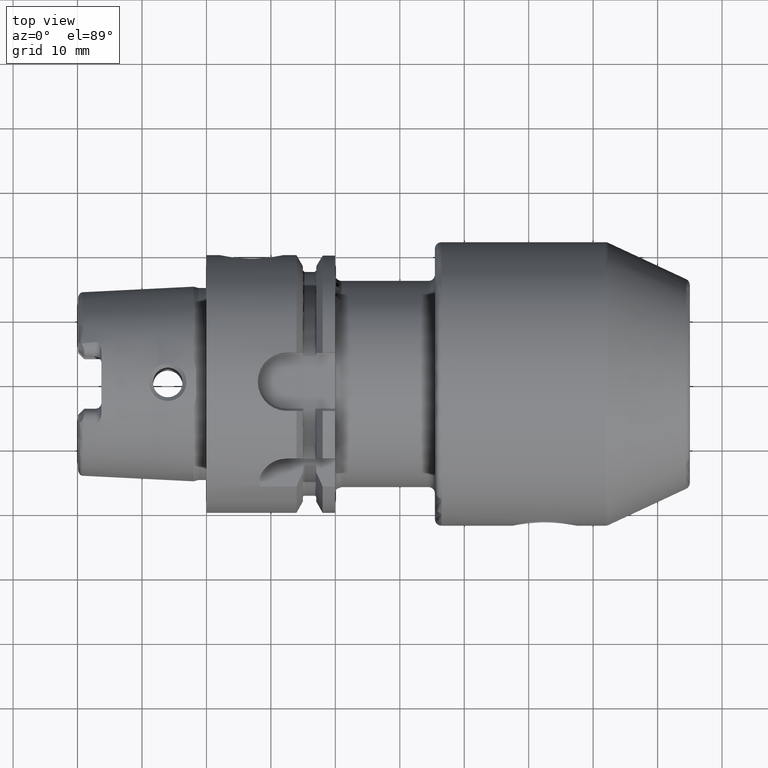
[diagram: clean part render]
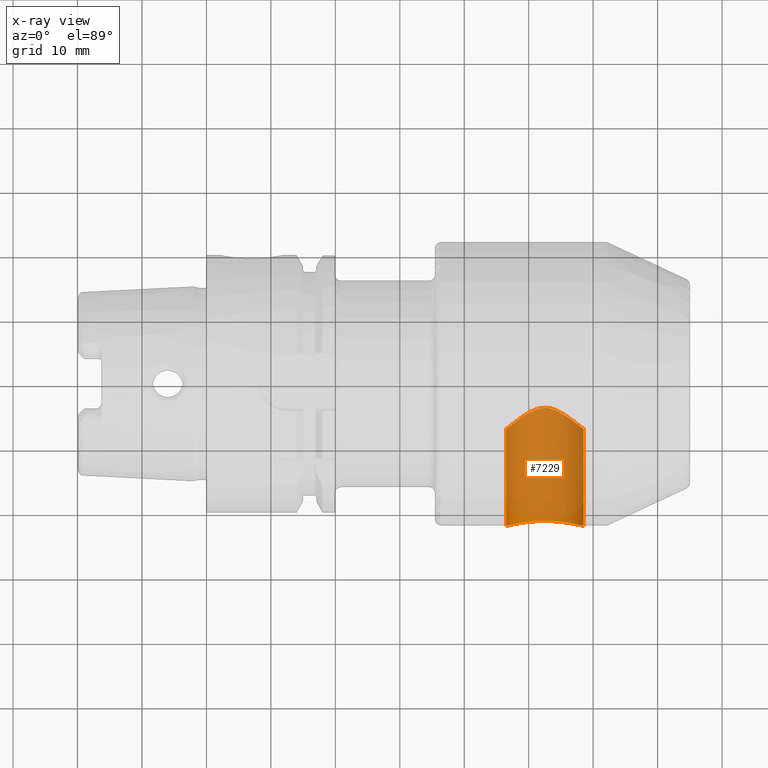
[diagram: x-ray — body ghosted, one internal face saturated and labeled with its STEP entity id]
A machine part, top view, then the same camera in x-ray: the body is ghosted and one INTERNAL B-rep face — a face not visible from any outside direction — is saturated and labeled: STEP entity #7229.
In plain terms, the highlighted cylindrical surface (partial cylindrical patch) has radius 6 mm, axis along (0, -1, 0).
Its self-contained STEP definition (entity closure, byte-faithful):
#7086=CARTESIAN_POINT('',(4.65E1,-7.E0,0.E0));
#7087=CARTESIAN_POINT('',(4.65E1,-7.E0,-2.339389667919E-1));
#7088=CARTESIAN_POINT('',(4.652736907257E1,-6.976517849196E0,
-7.045331336353E-1));
#7089=CARTESIAN_POINT('',(4.665301987942E1,-6.869116939093E0,
-1.408451064432E0));
#7090=CARTESIAN_POINT('',(4.686361935445E1,-6.690485969930E0,
-2.100545634014E0));
#7091=CARTESIAN_POINT('',(4.717063042689E1,-6.433445540202E0,
-2.792355338978E0));
#7092=CARTESIAN_POINT('',(4.758381969781E1,-6.094550661792E0,
-3.472213239308E0));
#7093=CARTESIAN_POINT('',(4.811875560036E1,-5.669995375219E0,
-4.129598583206E0));
#7094=CARTESIAN_POINT('',(4.875364505231E1,-5.192890895142E0,
-4.711905879170E0));
#7095=CARTESIAN_POINT('',(4.942831576919E1,-4.727006617097E0,
-5.174518878760E0));
#7096=CARTESIAN_POINT('',(5.011599447884E1,-4.310162805112E0,
-5.522372600452E0));
#7097=CARTESIAN_POINT('',(5.077045578150E1,-3.985314109277E0,
-5.757850859762E0));
#7098=CARTESIAN_POINT('',(5.138124217882E1,-3.760994109883E0,
-5.904952970837E0));
#7099=CARTESIAN_POINT('',(5.195397511094E1,-3.632805683801E0,
-5.983748347852E0));
#7100=CARTESIAN_POINT('',(5.249799517046E1,-3.592072364459E0,
-6.008036646468E0));
#7101=CARTESIAN_POINT('',(5.304228300774E1,-3.632215708202E0,
-5.984103145085E0));
#7102=CARTESIAN_POINT('',(5.361565462284E1,-3.760030423690E0,
-5.905562537409E0));
#7103=CARTESIAN_POINT('',(5.422721884864E1,-3.984260849560E0,
-5.758580688303E0));
#7104=CARTESIAN_POINT('',(5.488258387109E1,-4.309342393076E0,
-5.523022023067E0));
#7105=CARTESIAN_POINT('',(5.557093837116E1,-4.726504447013E0,
-5.174992406247E0));
#7106=CARTESIAN_POINT('',(5.624611202209E1,-5.192707195768E0,
-4.712129297396E0));
#7107=CARTESIAN_POINT('',(5.688127327036E1,-5.670016670636E0,
-4.129577271614E0));
#7108=CARTESIAN_POINT('',(5.741617109597E1,-6.094543828759E0,
-3.472219930320E0));
#7109=CARTESIAN_POINT('',(5.782936149380E1,-6.433438666583E0,
-2.792372518501E0));
#7110=CARTESIAN_POINT('',(5.813637747135E1,-6.690483315071E0,
-2.100555310171E0));
#7111=CARTESIAN_POINT('',(5.834698259968E1,-6.869119031757E0,
-1.408444137539E0));
#7112=CARTESIAN_POINT('',(5.847263316108E1,-6.976519768312E0,
-7.045139412353E-1));
#7113=CARTESIAN_POINT('',(5.85E1,-7.E0,-2.339302827302E-1));
#7114=CARTESIAN_POINT('',(5.85E1,-7.E0,0.E0));
#7116=CARTESIAN_POINT('',(5.85E1,-2.200002566573E1,0.E0));
#7117=CARTESIAN_POINT('',(5.85E1,-2.200002566573E1,-2.810040428168E-1));
#7118=CARTESIAN_POINT('',(5.846057587038E1,-2.198918322345E1,
-8.447410425427E-1));
#7119=CARTESIAN_POINT('',(5.828070912590E1,-2.194082936643E1,
-1.681166828391E0));
#7120=CARTESIAN_POINT('',(5.798454361485E1,-2.186415320100E1,
-2.483273810977E0));
#7121=CARTESIAN_POINT('',(5.757140960413E1,-2.176354031844E1,
-3.244966459155E0));
#7122=CARTESIAN_POINT('',(5.705477407150E1,-2.164815504419E1,
-3.937814900010E0));
#7123=CARTESIAN_POINT('',(5.643552284590E1,-2.152554199108E1,
-4.556764393484E0));
#7124=CARTESIAN_POINT('',(5.574202769721E1,-2.140880168208E1,
-5.073345330523E0));
#7125=CARTESIAN_POINT('',(5.497916574368E1,-2.130595090252E1,
-5.486417838251E0));
#7126=CARTESIAN_POINT('',(5.417782663786E1,-2.122717042282E1,
-5.781558831493E0));
#7127=CARTESIAN_POINT('',(5.334429046044E1,-2.117726849712E1,
-5.960508919103E0));
#7128=CARTESIAN_POINT('',(5.249993298962E1,-2.116038115782E1,
-6.019746650574E0));
#7129=CARTESIAN_POINT('',(5.165568656864E1,-2.117726980302E1,
-5.960504477425E0));
#7130=CARTESIAN_POINT('',(5.082206860024E1,-2.122717835099E1,
-5.781529701702E0));
#7131=CARTESIAN_POINT('',(5.002079876457E1,-2.130595549869E1,
-5.486400199503E0));
#7132=CARTESIAN_POINT('',(4.925789825686E1,-2.140881259150E1,
-5.073299918973E0));
#7133=CARTESIAN_POINT('',(4.856443294768E1,-2.152555047006E1,
-4.556723514696E0));
#7134=CARTESIAN_POINT('',(4.794518852043E1,-2.164816275731E1,
-3.937774696715E0));
#7135=CARTESIAN_POINT('',(4.742853924931E1,-2.176355234142E1,
-3.244884957966E0));
#7136=CARTESIAN_POINT('',(4.701544152298E1,-2.186415705284E1,
-2.483238529797E0));
#7137=CARTESIAN_POINT('',(4.671927522422E1,-2.194083349747E1,
-1.681110862416E0));
#7138=CARTESIAN_POINT('',(4.653942668183E1,-2.198918252177E1,
-8.447425944424E-1));
#7139=CARTESIAN_POINT('',(4.65E1,-2.200002575901E1,-2.810061840066E-1));
#7140=CARTESIAN_POINT('',(4.65E1,-2.200002575901E1,0.E0));
#7142=DIRECTION('',(0.E0,1.E0,0.E0));
#7143=VECTOR('',#7142,1.500002575901E1);
#7144=CARTESIAN_POINT('',(4.65E1,-2.200002575901E1,0.E0));
#7145=LINE('',#7144,#7143);
#7172=DIRECTION('',(0.E0,1.E0,0.E0));
#7173=VECTOR('',#7172,1.500002566573E1);
#7174=CARTESIAN_POINT('',(5.85E1,-2.200002566573E1,0.E0));
#7175=LINE('',#7174,#7173);
#7206=CARTESIAN_POINT('',(4.65E1,-2.200002575901E1,0.E0));
#7207=CARTESIAN_POINT('',(4.65E1,-7.E0,0.E0));
#7208=VERTEX_POINT('',#7206);
#7209=VERTEX_POINT('',#7207);
#7210=CARTESIAN_POINT('',(5.85E1,-2.200002566573E1,0.E0));
#7211=CARTESIAN_POINT('',(5.85E1,-7.E0,0.E0));
#7212=VERTEX_POINT('',#7210);
#7213=VERTEX_POINT('',#7211);
#7214=CARTESIAN_POINT('',(5.25E1,3.267608614893E0,0.E0));
#7215=DIRECTION('',(0.E0,-1.E0,0.E0));
#7216=DIRECTION('',(-1.E0,0.E0,0.E0));
#7217=AXIS2_PLACEMENT_3D('',#7214,#7215,#7216);
#7218=CYLINDRICAL_SURFACE('',#7217,6.E0);
#7220=ORIENTED_EDGE('',*,*,#7219,.T.);
#7222=ORIENTED_EDGE('',*,*,#7221,.T.);
#7224=ORIENTED_EDGE('',*,*,#7223,.F.);
#7226=ORIENTED_EDGE('',*,*,#7225,.T.);
#7227=EDGE_LOOP('',(#7220,#7222,#7224,#7226));
#7228=FACE_OUTER_BOUND('',#7227,.F.);
#7229=ADVANCED_FACE('',(#7228),#7218,.F.);
#7115=B_SPLINE_CURVE_WITH_KNOTS('',3,(#7086,#7087,#7088,#7089,#7090,#7091,#7092,
#7093,#7094,#7095,#7096,#7097,#7098,#7099,#7100,#7101,#7102,#7103,#7104,#7105,
#7106,#7107,#7108,#7109,#7110,#7111,#7112,#7113,#7114),.UNSPECIFIED.,.F.,.F.,(4,
1,1,1,1,1,1,1,1,1,1,1,1,1,1,1,1,1,1,1,1,1,1,1,1,1,4),(0.E0,3.846153846154E-2,
7.692307692308E-2,1.153846153846E-1,1.538461538462E-1,1.923076923077E-1,
2.307692307692E-1,2.692307692308E-1,3.076923076923E-1,3.461538461538E-1,
3.846153846154E-1,4.230769230769E-1,4.615384615385E-1,5.E-1,5.384615384615E-1,
5.769230769231E-1,6.153846153846E-1,6.538461538462E-1,6.923076923077E-1,
7.307692307692E-1,7.692307692308E-1,8.076923076923E-1,8.461538461538E-1,
8.846153846154E-1,9.230769230769E-1,9.615384615385E-1,1.E0),.UNSPECIFIED.);
#7141=B_SPLINE_CURVE_WITH_KNOTS('',3,(#7116,#7117,#7118,#7119,#7120,#7121,#7122,
#7123,#7124,#7125,#7126,#7127,#7128,#7129,#7130,#7131,#7132,#7133,#7134,#7135,
#7136,#7137,#7138,#7139,#7140),.UNSPECIFIED.,.F.,.F.,(4,1,1,1,1,1,1,1,1,1,1,1,1,
1,1,1,1,1,1,1,1,1,4),(0.E0,4.545454545455E-2,9.090909090909E-2,
1.363636363636E-1,1.818181818182E-1,2.272727272727E-1,2.727272727273E-1,
3.181818181818E-1,3.636363636364E-1,4.090909090909E-1,4.545454545455E-1,5.E-1,
5.454545454545E-1,5.909090909091E-1,6.363636363636E-1,6.818181818182E-1,
7.272727272727E-1,7.727272727273E-1,8.181818181818E-1,8.636363636364E-1,
9.090909090909E-1,9.545454545455E-1,1.E0),.UNSPECIFIED.);
#7219=EDGE_CURVE('',#7208,#7209,#7145,.T.);
#7221=EDGE_CURVE('',#7209,#7213,#7115,.T.);
#7223=EDGE_CURVE('',#7212,#7213,#7175,.T.);
#7225=EDGE_CURVE('',#7212,#7208,#7141,.T.);